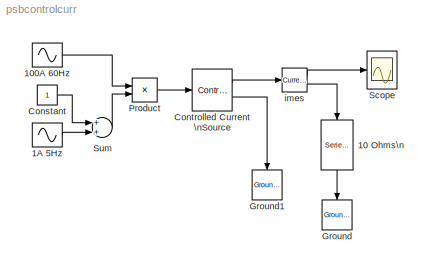
MODEL psbcontrolcurr
KIND model
BLOCK [Reference] 10 Ohms\n  REF=powerlib2/Elements/Series RLC Branch
  PSBOutputType = 1
  Ports = [1, 1]
  SourceBlock = powerlib2/Elements/Series RLC Branch
  SourceType = Series RLC Branch
  Tag = PoWeRsYsTeMbLoCk
  a = 10
  b = 0
  c = inf
  mesure = None
BLOCK [Sin] 100A 60Hz
  Amplitude = 100
  Frequency = 2*pi*60
  Ports = [0, 1]
  SampleTime = 0
  SineType = Time based
BLOCK [Sin] 1A 5Hz
  Frequency = 2*pi*5
  Ports = [0, 1]
  SampleTime = 0
  SineType = Time based
BLOCK [Constant] Constant
BLOCK [Reference] Controlled Current \nSource  REF=powerlib2/Electrical\nSources/Controlled Current Source
  PSBOutputType = 11
  Ports = [1, 2]
  SourceBlock = powerlib2/Electrical\nSources/Controlled Current Source
  SourceType = Controlled Current Source
  Tag = PoWeRsYsTeMbLoCk
  freq = 0
  ia = 0
  initsrc = on
  iph = 0
  mesure = None
  srctyp = AC
BLOCK [Reference] Ground  REF=powerlib2/Connectors/Ground (input)
  Ports = [1]
  SourceBlock = powerlib2/Connectors/Ground (input)
  SourceType = Ground
  Tag = PoWeRsYsTeMbLoCk
BLOCK [Reference] Ground1  REF=powerlib2/Connectors/Ground (input)
  Ports = [1]
  SourceBlock = powerlib2/Connectors/Ground (input)
  SourceType = Ground
  Tag = PoWeRsYsTeMbLoCk
BLOCK [Product] Product
  Ports = [2, 1]
  RndMeth = Floor
BLOCK [Scope] Scope
  DataFormat = Array
  NumInputPorts = 1
  Ports = [1]
  TickLabels = on
  TimeRange = 0.5
  YMax = 200
  YMin = -200
BLOCK [Sum] Sum
  Ports = [2, 1]
BLOCK [Reference] imes  REF=powerlib2/Measurements/Current Measurement
  OutputType = Magnitude
  PSBOutputType = 01
  PSBequivalent = 0
  PhasorSimulation = off
  Ports = [1, 2]
  SourceBlock = powerlib2/Measurements/Current Measurement
  SourceType = Current Measurement
  Tag = PoWeRsYsTeMmEaSuReMeNt
LINE 10 Ohms\n:1 -> Ground:1
LINE 100A 60Hz:1 -> Product:1
LINE 1A 5Hz:1 -> Sum:2
LINE Constant:1 -> Sum:1
LINE Controlled Current \nSource:1 -> imes:1
LINE Controlled Current \nSource:2 -> Ground1:1
LINE Product:1 -> Controlled Current \nSource:1
LINE Sum:1 -> Product:2
LINE imes:1 -> Scope:1
LINE imes:2 -> 10 Ohms\n:1
